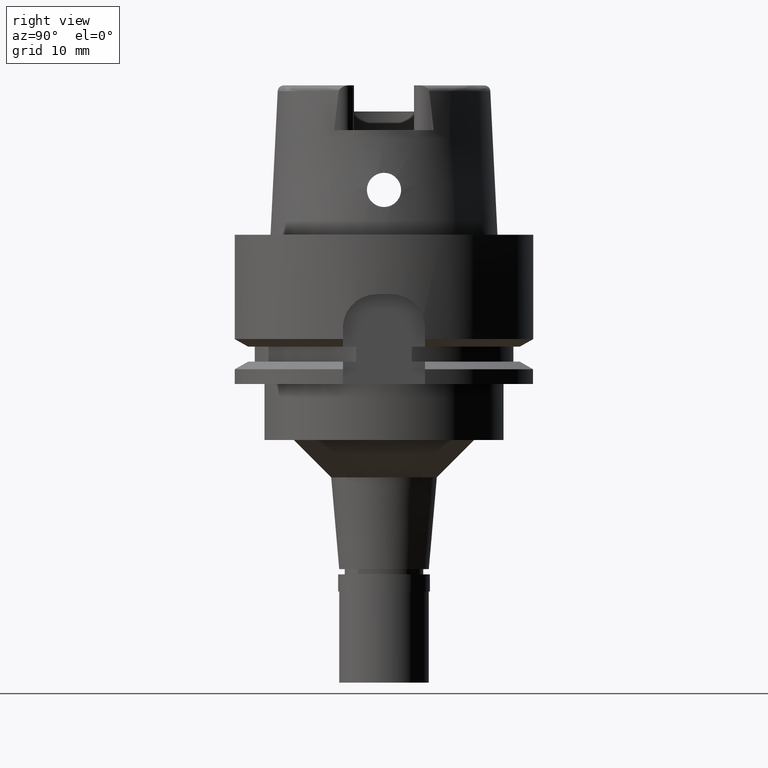
[diagram: clean part render]
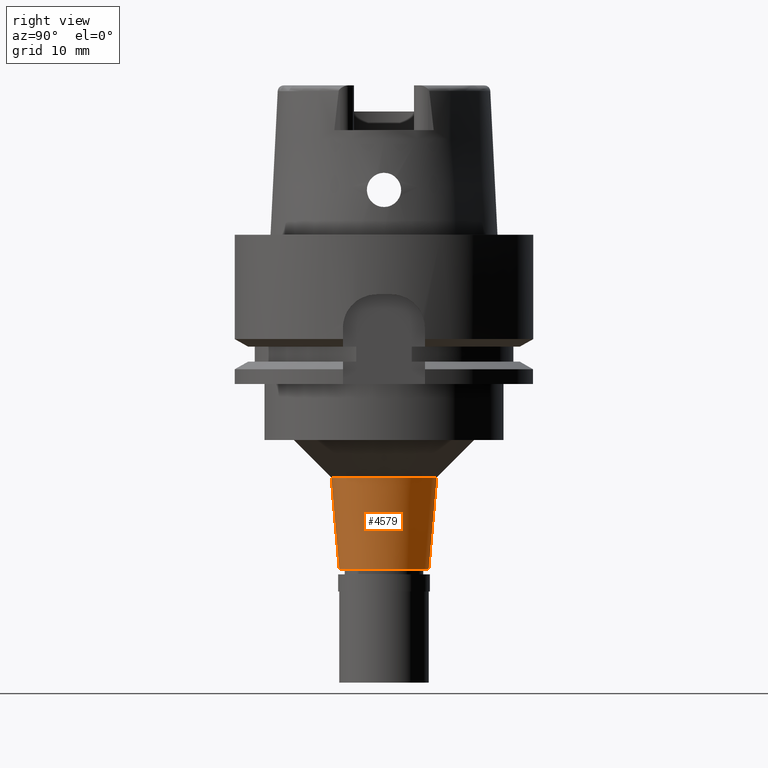
[diagram: same view with one face highlighted and labeled with its STEP entity id]
A machine part, right view. The second image highlights one B-rep face of the part: STEP entity #4579.
In plain terms, the highlighted conical surface has half-angle 5 deg.
Its self-contained STEP definition (entity closure, byte-faithful):
#154 = AXIS2_PLACEMENT_3D ( 'NONE', #2378, #4068, #314 ) ;
#261 = CARTESIAN_POINT ( 'NONE',  ( 0.0000000000000000000, -7.076110561369000962, -32.50000000000000000 ) ) ;
#314 = DIRECTION ( 'NONE',  ( 0.0000000000000000000, -1.000000000000000000, 0.0000000000000000000 ) ) ;
#474 = EDGE_CURVE ( 'NONE', #3449, #509, #2214, .T. ) ;
#509 = VERTEX_POINT ( 'NONE', #3061 ) ;
#562 = VERTEX_POINT ( 'NONE', #4226 ) ;
#1032 = CIRCLE ( 'NONE', #154, 6.000000000000000000 ) ;
#1116 = AXIS2_PLACEMENT_3D ( 'NONE', #5263, #2271, #4400 ) ;
#1258 = ORIENTED_EDGE ( 'NONE', *, *, #474, .F. ) ;
#1395 = ORIENTED_EDGE ( 'NONE', *, *, #2603, .F. ) ;
#1687 = CARTESIAN_POINT ( 'NONE',  ( 0.0000000000000000000, 7.076110561369000962, -32.50000000000000000 ) ) ;
#1703 = CARTESIAN_POINT ( 'NONE',  ( 0.0000000000000000000, 0.0000000000000000000, -38.64999999999999858 ) ) ;
#1733 = CARTESIAN_POINT ( 'NONE',  ( 0.0000000000000000000, 7.076110561369000962, -32.50000000000000000 ) ) ;
#1773 = CARTESIAN_POINT ( 'NONE',  ( 0.0000000000000000000, -7.076110561369000962, -32.50000000000000000 ) ) ;
#2056 = VECTOR ( 'NONE', #3236, 1000.000000000000000 ) ;
#2214 = LINE ( 'NONE', #1687, #3268 ) ;
#2263 = AXIS2_PLACEMENT_3D ( 'NONE', #1703, #4150, #5367 ) ;
#2271 = DIRECTION ( 'NONE',  ( 0.0000000000000000000, 0.0000000000000000000, 1.000000000000000000 ) ) ;
#2300 = EDGE_CURVE ( 'NONE', #3020, #562, #3340, .T. ) ;
#2378 = CARTESIAN_POINT ( 'NONE',  ( 0.0000000000000000000, 0.0000000000000000000, -44.79999999999999716 ) ) ;
#2457 = EDGE_CURVE ( 'NONE', #562, #509, #1032, .T. ) ;
#2592 = ORIENTED_EDGE ( 'NONE', *, *, #2300, .T. ) ;
#2603 = EDGE_CURVE ( 'NONE', #3020, #3449, #4365, .T. ) ;
#2604 = ORIENTED_EDGE ( 'NONE', *, *, #2457, .T. ) ;
#3020 = VERTEX_POINT ( 'NONE', #1773 ) ;
#3061 = CARTESIAN_POINT ( 'NONE',  ( 0.0000000000000000000, 6.000000000000000000, -44.79999999999999716 ) ) ;
#3236 = DIRECTION ( 'NONE',  ( 0.0000000000000000000, 0.08715574274767391716, -0.9961946980917442129 ) ) ;
#3268 = VECTOR ( 'NONE', #3480, 1000.000000000000000 ) ;
#3340 = LINE ( 'NONE', #261, #2056 ) ;
#3449 = VERTEX_POINT ( 'NONE', #1733 ) ;
#3480 = DIRECTION ( 'NONE',  ( 0.0000000000000000000, -0.08715574274767391716, -0.9961946980917442129 ) ) ;
#4068 = DIRECTION ( 'NONE',  ( 0.0000000000000000000, 0.0000000000000000000, 1.000000000000000000 ) ) ;
#4150 = DIRECTION ( 'NONE',  ( 0.0000000000000000000, 0.0000000000000000000, 1.000000000000000000 ) ) ;
#4226 = CARTESIAN_POINT ( 'NONE',  ( 0.0000000000000000000, -6.000000000000000000, -44.79999999999999716 ) ) ;
#4365 = CIRCLE ( 'NONE', #1116, 7.076110561368000873 ) ;
#4400 = DIRECTION ( 'NONE',  ( 0.0000000000000000000, -1.000000000000000000, 0.0000000000000000000 ) ) ;
#4579 = ADVANCED_FACE ( 'NONE', ( #4964 ), #5242, .T. ) ;
#4932 = EDGE_LOOP ( 'NONE', ( #1395, #2592, #2604, #1258 ) ) ;
#4964 = FACE_OUTER_BOUND ( 'NONE', #4932, .T. ) ;
#5242 = CONICAL_SURFACE ( 'NONE', #2263, 6.538055280683999548, 0.08726646259969973729 ) ;
#5263 = CARTESIAN_POINT ( 'NONE',  ( 0.0000000000000000000, 0.0000000000000000000, -32.50000000000000000 ) ) ;
#5367 = DIRECTION ( 'NONE',  ( 0.0000000000000000000, 1.000000000000000000, 0.0000000000000000000 ) ) ;